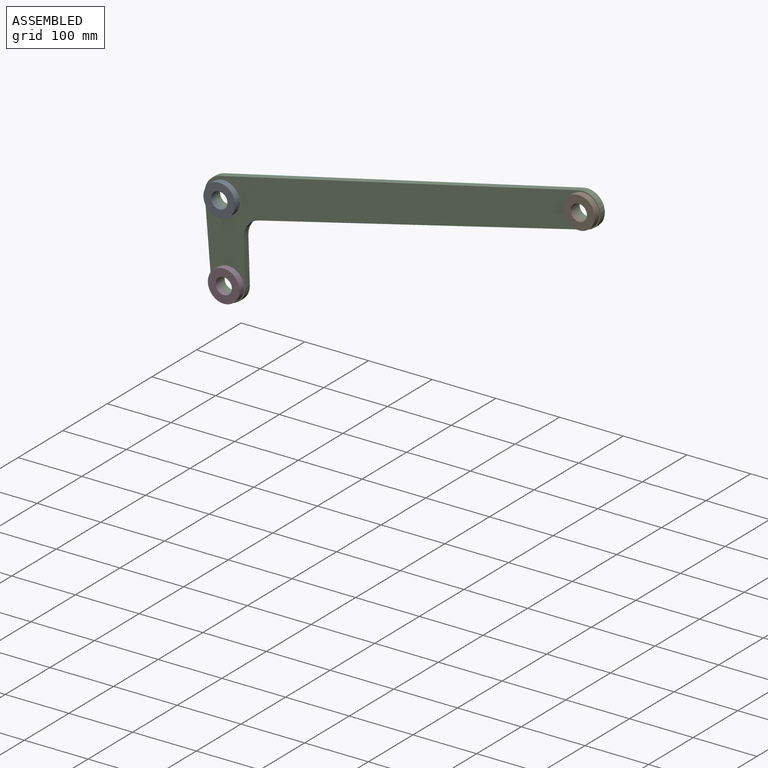
[diagram: assembled view]
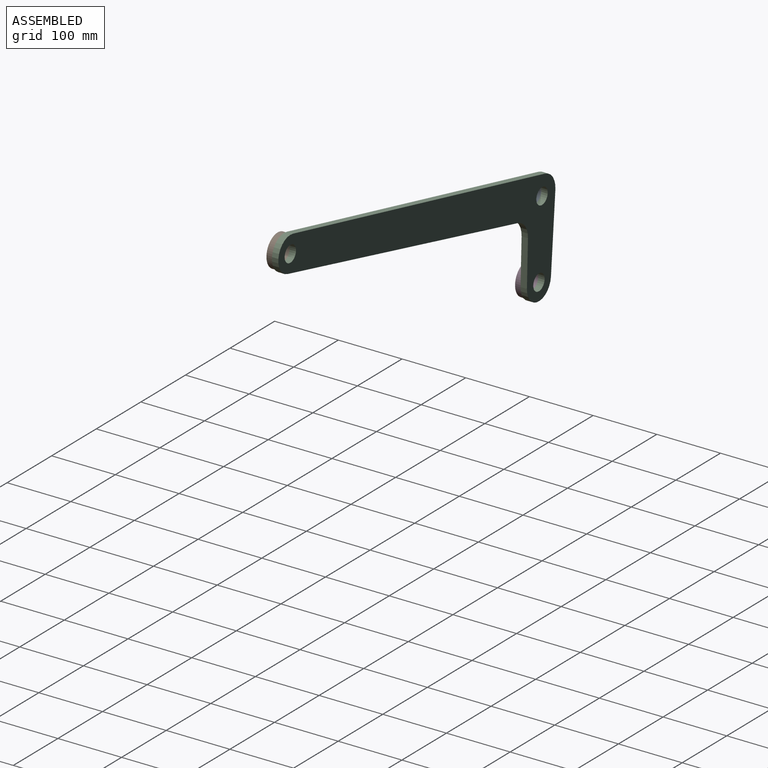
[diagram: assembled view, second angle]
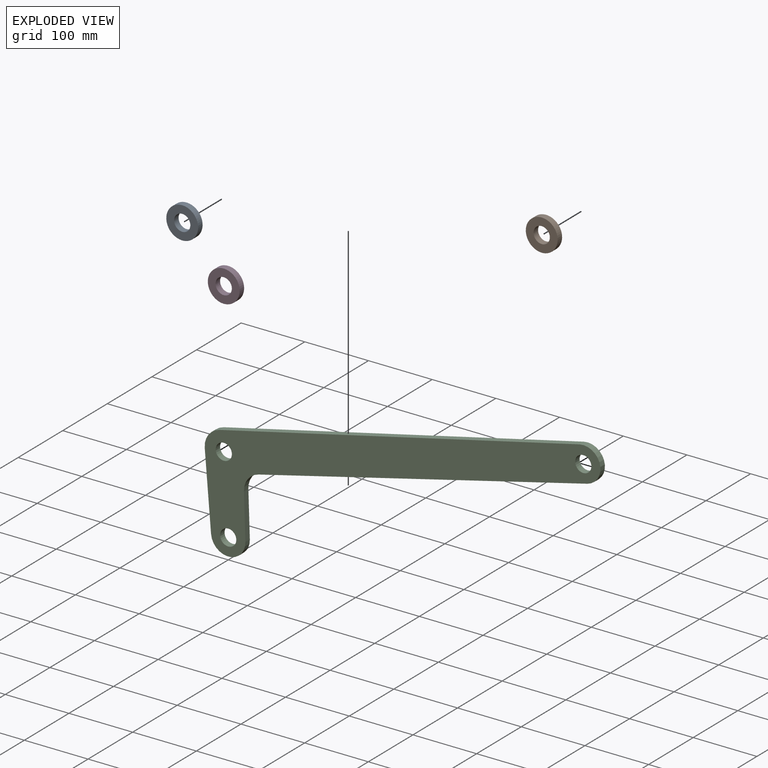
[diagram: exploded view]
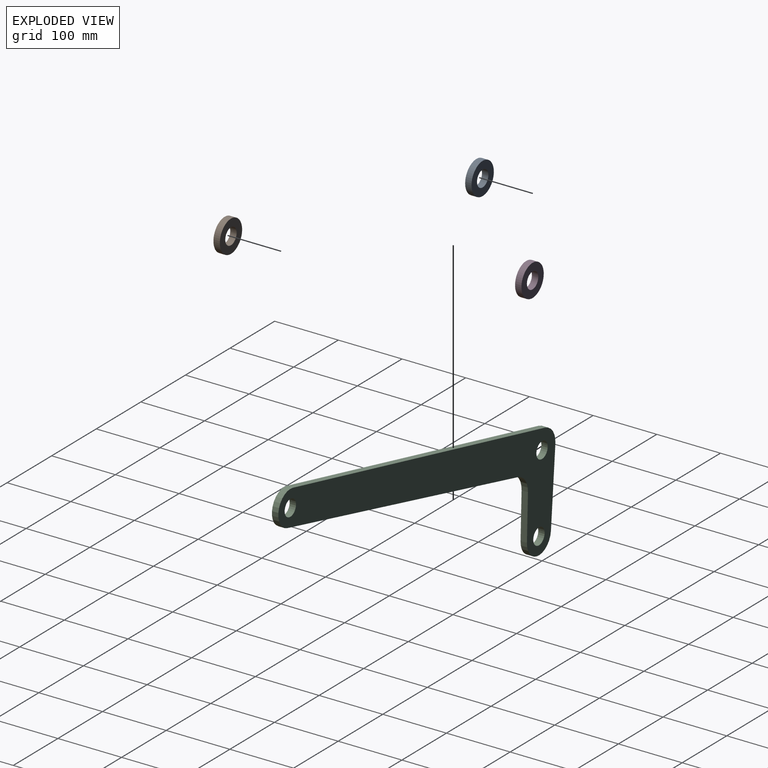
[diagram: exploded view, second angle]
ASSEMBLY  parts=4 mates=3
PART A: 4 faces, bbox 50x10x50 mm
  f0: cylinder r=12.75mm len=25.5mm, axis (0,-1,0), area 801.1mm2, adj f2,f3
  f1: cylinder r=25mm len=50mm, axis (0,-1,0), area 1570.8mm2, adj f2,f3
  f2: plane 50x50mm, normal (0,1,0), area 1452.8mm2, adj f0,f1
  f3: plane 50x50mm, normal (0,-1,0), area 1452.8mm2, adj f0,f1
PART B: same geometry as A
PART C: 13 faces, bbox 621.4x10x307.3 mm
  f0: cylinder r=30mm len=30.14mm, axis (0,1,0), area 409.8mm2, adj f1,f9,f11,f12
  f1: plane 516.26x124.97mm, normal (0.24,0,-0.97), area 5311.7mm2, adj f0,f2,f11,f12
  f2: cylinder r=27mm len=53.24mm, axis (0,1,0), area 845.4mm2, adj f1,f3,f11,f12
  f3: plane 565.09x130.62mm, normal (-0.23,0,0.97), area 5799.9mm2, adj f2,f4,f11,f12
  f4: cylinder r=30mm len=31.71mm, axis (0,1,0), area 427.9mm2, adj f3,f5,f11,f12
  f5: plane 119.55x10mm, normal (-1,0,-0.08), area 1199.6mm2, adj f4,f6,f11,f12
  f6: cylinder r=27mm len=53.91mm, axis (0,1,0), area 834.7mm2, adj f5,f9,f11,f12
  f7: cylinder r=12.75mm len=25.5mm, axis (0,1,0), area 801.1mm2, adj f11,f12
  f8: cylinder r=12.75mm len=25.5mm, axis (0,1,0), area 801.1mm2, adj f11,f12
  f9: plane 71.1x10mm, normal (1,0,0.03), area 711.4mm2, adj f0,f6,f11,f12
  f10: cylinder r=12.75mm len=25.5mm, axis (0,1,0), area 801.1mm2, adj f11,f12
  f11: plane 621.42x307.34mm, normal (0,-1,0), area 40660.7mm2, adj f0,f1,f2,f3,f4,f5,f6,f7
  f12: plane 621.42x307.34mm, normal (0,1,0), area 40660.7mm2, adj f0,f1,f2,f3,f4,f5,f6,f7
PART D: same geometry as A
PLACE A t=(0,-20,0)mm
PLACE B t=(564.42,-20,133.54)mm
PLACE C at identity fixed
PLACE D t=(6.93,-20,-119.8)mm
MATE revolute C.f6 <-> D.f0  axis (0,-1,0) through (-293.07,-10,-174.8)mm
MATE revolute B.f0 <-> C.f2  axis (0,1,0) through (264.42,-10,78.54)mm
MATE revolute C.f4 <-> A.f0  axis (0,-1,0) through (-300,-10,-55)mm
